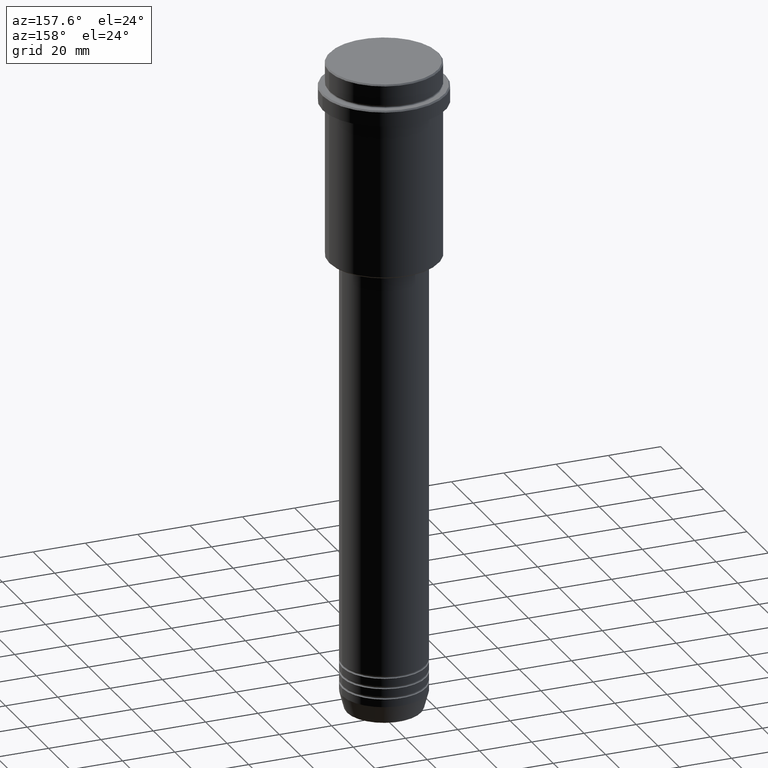
[diagram: clean part render]
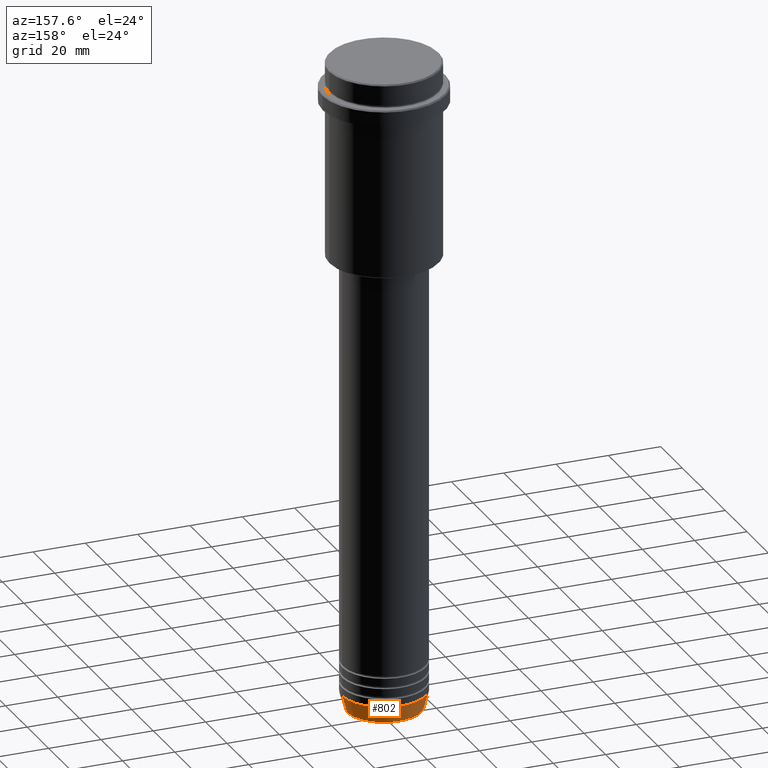
[diagram: same view with one face highlighted and labeled with its STEP entity id]
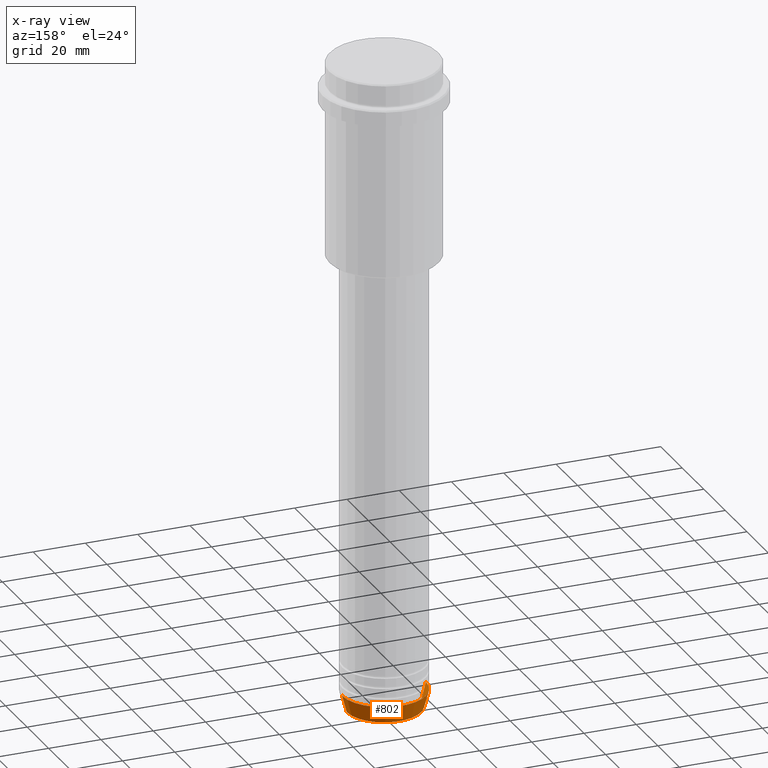
[diagram: x-ray of the same camera — body ghosted, the highlighted face saturated]
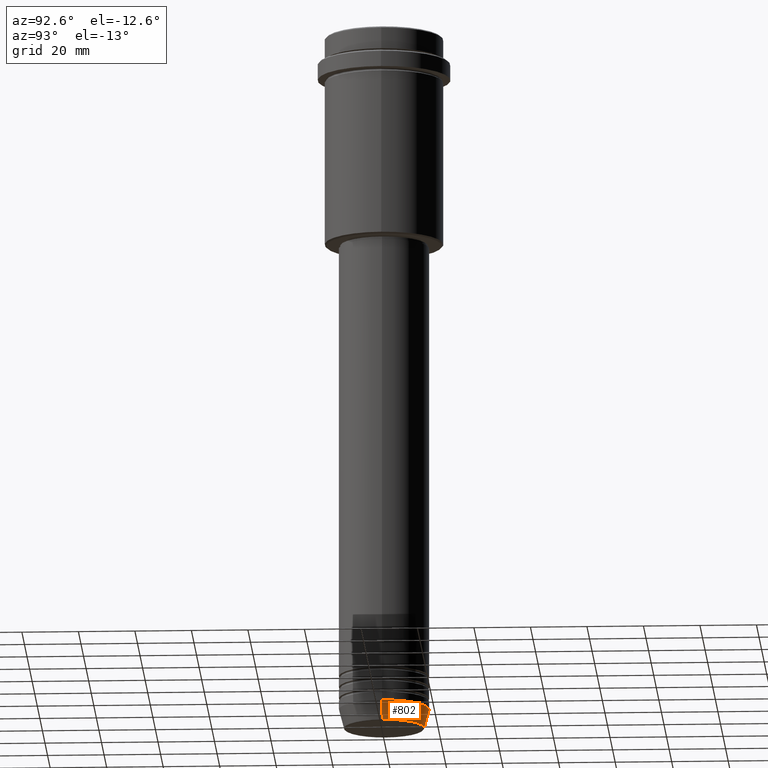
[diagram: same view with one face highlighted and labeled with its STEP entity id]
A machine part, auxiliary view. The second image highlights one B-rep face of the part: STEP entity #802.
The next image is the same camera in x-ray: the body ghosted, the highlighted face saturated — about 0% of this face is hidden behind the body in this view.
A second angle (auxiliary view) of the same face is appended — the face is thin or edge-on in the first view.
In plain terms, the highlighted conical surface has half-angle 15 deg.
Its self-contained STEP definition (entity closure, byte-faithful):
#16 = AXIS2_PLACEMENT_3D ( 'NONE', #855, #752, #667 ) ;
#19 = VECTOR ( 'NONE', #321, 1000.000000000000000 ) ;
#114 = AXIS2_PLACEMENT_3D ( 'NONE', #937, #841, #606 ) ;
#120 = CARTESIAN_POINT ( 'NONE',  ( -14.22365507213718239, 1.850665122131322942E-15, -249.6294095225512422 ) ) ;
#122 = VERTEX_POINT ( 'NONE', #842 ) ;
#156 = ORIENTED_EDGE ( 'NONE', *, *, #360, .F. ) ;
#219 = CARTESIAN_POINT ( 'NONE',  ( -16.00000000000000000, 1.959434878635765131E-15, -243.0000000000000000 ) ) ;
#248 = VECTOR ( 'NONE', #1062, 1000.000000000000000 ) ;
#268 = EDGE_CURVE ( 'NONE', #704, #301, #311, .T. ) ;
#301 = VERTEX_POINT ( 'NONE', #219 ) ;
#311 = LINE ( 'NONE', #1087, #248 ) ;
#321 = DIRECTION ( 'NONE',  ( 0.2588190451025213501, 0.000000000000000000, 0.9659258262890680902 ) ) ;
#360 = EDGE_CURVE ( 'NONE', #122, #1388, #964, .T. ) ;
#507 = FACE_OUTER_BOUND ( 'NONE', #541, .T. ) ;
#541 = EDGE_LOOP ( 'NONE', ( #1130, #608, #1165, #156 ) ) ;
#606 = DIRECTION ( 'NONE',  ( 1.000000000000000000, 0.000000000000000000, 0.000000000000000000 ) ) ;
#608 = ORIENTED_EDGE ( 'NONE', *, *, #268, .T. ) ;
#667 = DIRECTION ( 'NONE',  ( 1.000000000000000000, 0.000000000000000000, 0.000000000000000000 ) ) ;
#704 = VERTEX_POINT ( 'NONE', #120 ) ;
#722 = CARTESIAN_POINT ( 'NONE',  ( 0.000000000000000000, 0.000000000000000000, -243.0000000000000000 ) ) ;
#752 = DIRECTION ( 'NONE',  ( -0.000000000000000000, -0.000000000000000000, 1.000000000000000000 ) ) ;
#802 = ADVANCED_FACE ( 'NONE', ( #507 ), #970, .T. ) ;
#821 = DIRECTION ( 'NONE',  ( -0.000000000000000000, -0.000000000000000000, 1.000000000000000000 ) ) ;
#840 = EDGE_CURVE ( 'NONE', #1388, #301, #1411, .T. ) ;
#841 = DIRECTION ( 'NONE',  ( -0.000000000000000000, -0.000000000000000000, 1.000000000000000000 ) ) ;
#842 = CARTESIAN_POINT ( 'NONE',  ( 14.22365507213718239, 0.000000000000000000, -249.6294095225512422 ) ) ;
#855 = CARTESIAN_POINT ( 'NONE',  ( 0.000000000000000000, 0.000000000000000000, -249.6294095225512422 ) ) ;
#863 = CARTESIAN_POINT ( 'NONE',  ( 16.00000000000000000, 0.000000000000000000, -243.0000000000000000 ) ) ;
#937 = CARTESIAN_POINT ( 'NONE',  ( 0.000000000000000000, 0.000000000000000000, -243.0000000000000000 ) ) ;
#956 = EDGE_CURVE ( 'NONE', #122, #704, #1040, .T. ) ;
#964 = LINE ( 'NONE', #863, #19 ) ;
#970 = CONICAL_SURFACE ( 'NONE', #114, 16.00000000000000000, 0.2617993877991500740 ) ;
#1040 = CIRCLE ( 'NONE', #16, 14.22365507213718239 ) ;
#1056 = DIRECTION ( 'NONE',  ( 1.000000000000000000, 0.000000000000000000, 0.000000000000000000 ) ) ;
#1062 = DIRECTION ( 'NONE',  ( -0.2588190451025213501, 3.169619151431772337E-17, 0.9659258262890680902 ) ) ;
#1087 = CARTESIAN_POINT ( 'NONE',  ( -16.00000000000000000, 1.959434878635765131E-15, -243.0000000000000000 ) ) ;
#1130 = ORIENTED_EDGE ( 'NONE', *, *, #956, .T. ) ;
#1165 = ORIENTED_EDGE ( 'NONE', *, *, #840, .F. ) ;
#1172 = CARTESIAN_POINT ( 'NONE',  ( 16.00000000000000000, 0.000000000000000000, -243.0000000000000000 ) ) ;
#1341 = AXIS2_PLACEMENT_3D ( 'NONE', #722, #821, #1056 ) ;
#1388 = VERTEX_POINT ( 'NONE', #1172 ) ;
#1411 = CIRCLE ( 'NONE', #1341, 16.00000000000000000 ) ;